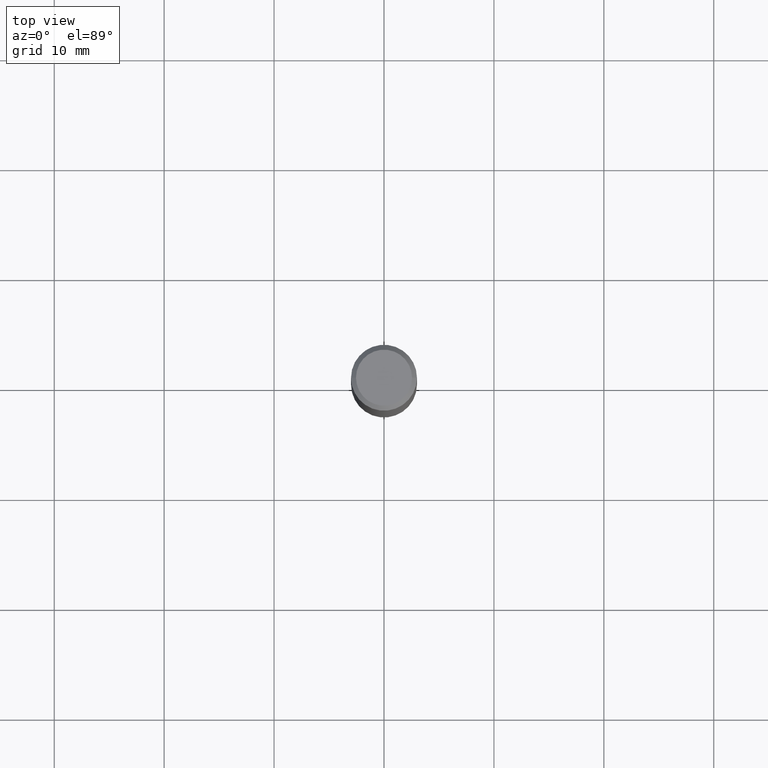
[diagram: clean part render]
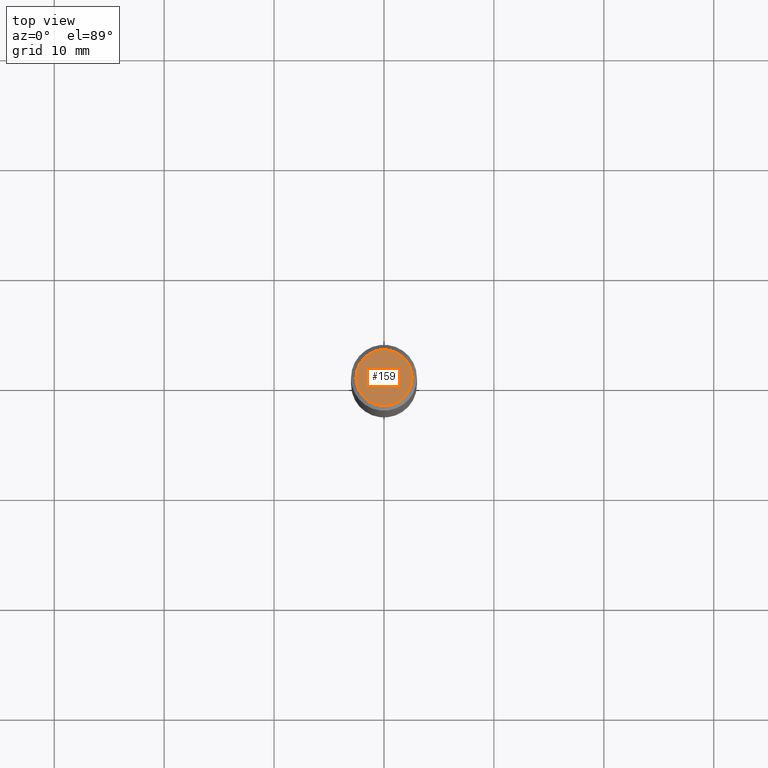
[diagram: same view with one face highlighted and labeled with its STEP entity id]
A machine part, top view. The second image highlights one B-rep face of the part: STEP entity #159.
In plain terms, the highlighted planar face has unit normal (0, -0, -1).
Its self-contained STEP definition (entity closure, byte-faithful):
#21 = ORIENTED_EDGE ( 'NONE', *, *, #86, .T. ) ;
#24 = CARTESIAN_POINT ( 'NONE',  ( 3.006365662761078129E-46, -4.292293396963677838E-32, -1.229361689324070654E-17 ) ) ;
#26 = AXIS2_PLACEMENT_3D ( 'NONE', #203, #277, #100 ) ;
#28 = CARTESIAN_POINT ( 'NONE',  ( -0.1003850000000000020, 7.319105043583384717E-16, -1.229361689324571704E-17 ) ) ;
#86 = EDGE_CURVE ( 'NONE', #430, #300, #230, .T. ) ;
#100 = DIRECTION ( 'NONE',  ( -1.000000000000000000, 6.982962677686265922E-15, -4.876176775795935793E-29 ) ) ;
#126 = CIRCLE ( 'NONE', #134, 0.1003850000000000020 ) ;
#131 = DIRECTION ( 'NONE',  ( -2.445468806185136597E-29, 3.491481338843145583E-15, 1.000000000000000000 ) ) ;
#134 = AXIS2_PLACEMENT_3D ( 'NONE', #24, #131, #286 ) ;
#143 = CARTESIAN_POINT ( 'NONE',  ( 0.1003850000000000020, -7.803837484803599345E-16, -1.229361689323552810E-17 ) ) ;
#159 = ADVANCED_FACE ( 'NONE', ( #235 ), #168, .F. ) ;
#168 = PLANE ( 'NONE',  #26 ) ;
#202 = EDGE_CURVE ( 'NONE', #300, #430, #126, .T. ) ;
#203 = CARTESIAN_POINT ( 'NONE',  ( 1.503182831380539065E-46, -2.146146698481838919E-32, -6.146808446620353272E-18 ) ) ;
#229 = CARTESIAN_POINT ( 'NONE',  ( 3.006365662761078129E-46, -4.292293396963677838E-32, -1.229361689324070654E-17 ) ) ;
#230 = CIRCLE ( 'NONE', #482, 0.1003850000000000020 ) ;
#235 = FACE_OUTER_BOUND ( 'NONE', #390, .T. ) ;
#277 = DIRECTION ( 'NONE',  ( 2.438088387897960049E-29, -3.491481338843145188E-15, -1.000000000000000000 ) ) ;
#286 = DIRECTION ( 'NONE',  ( 1.000000000000000000, -6.982962677686266711E-15, 4.875668750515086816E-29 ) ) ;
#300 = VERTEX_POINT ( 'NONE', #28 ) ;
#338 = DIRECTION ( 'NONE',  ( -2.445468806185136597E-29, 3.491481338843145583E-15, 1.000000000000000000 ) ) ;
#341 = DIRECTION ( 'NONE',  ( 1.000000000000000000, -6.982962677686266711E-15, 4.875668750515086816E-29 ) ) ;
#384 = ORIENTED_EDGE ( 'NONE', *, *, #202, .T. ) ;
#390 = EDGE_LOOP ( 'NONE', ( #384, #21 ) ) ;
#430 = VERTEX_POINT ( 'NONE', #143 ) ;
#482 = AXIS2_PLACEMENT_3D ( 'NONE', #229, #338, #341 ) ;